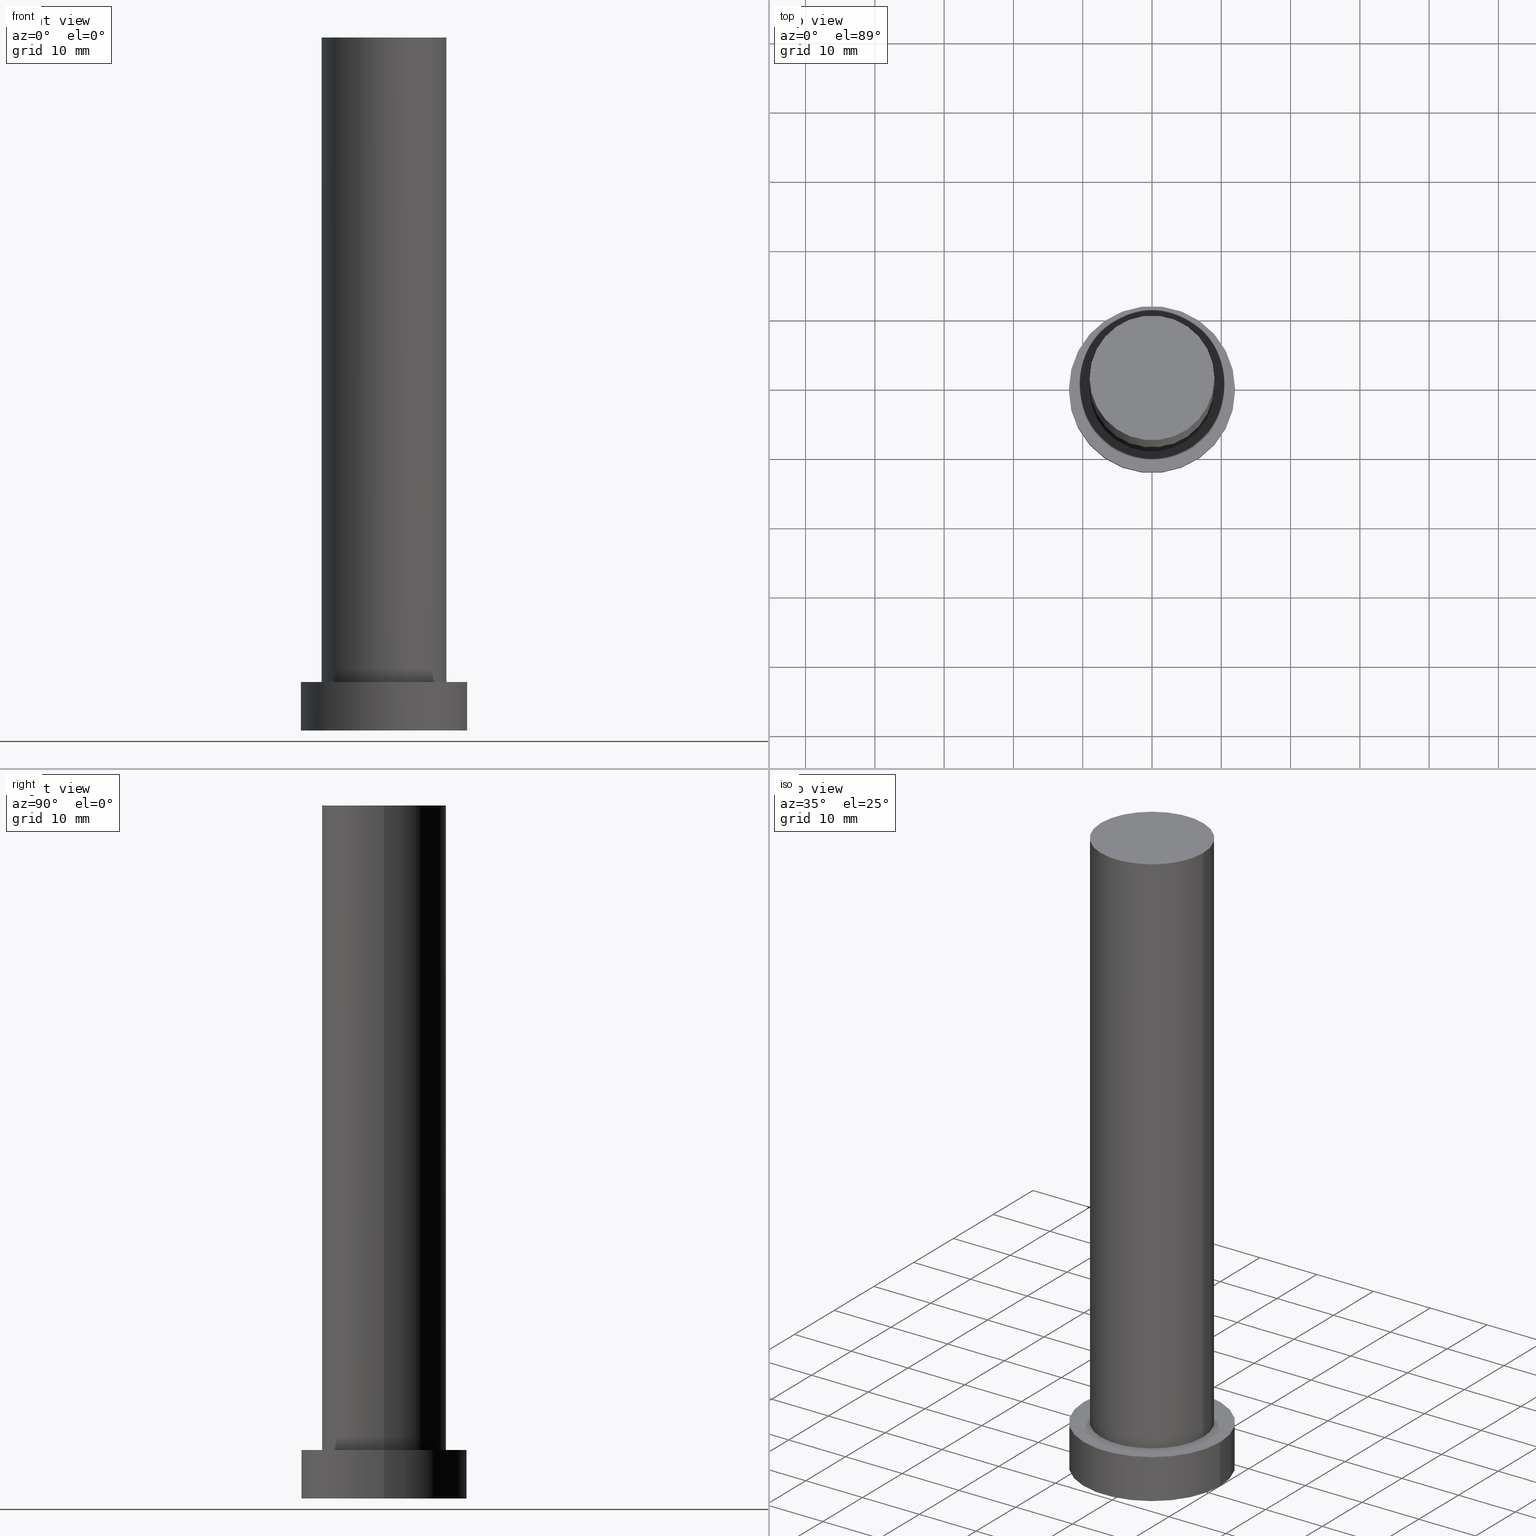
[diagram: canonical four-view strip — front | top / right | iso, engineering-drawing reading convention]
A machine part, canonical four-view strip (front | top / right | iso — engineering-drawing reading convention). The complete STEP part file that produces these views, byte-faithful:
ISO-10303-21;
HEADER;
FILE_DESCRIPTION (( 'STEP AP203' ),
    '1' );
FILE_NAME ('fcec.STEP',
    '2023-02-12T10:38:48',
    ( '' ),
    ( '' ),
    'SwSTEP 2.0',
    'SolidWorks 2019',
    '' );
FILE_SCHEMA (( 'CONFIG_CONTROL_DESIGN' ));
ENDSEC;

DATA;
#1 = SECURITY_CLASSIFICATION ( '', '', #4 ) ;
#2 = PERSON_AND_ORGANIZATION ( #185, #207 ) ;
#3 = CARTESIAN_POINT ( 'NONE',  ( 0.000000000000000000, 0.000000000000000000, 0.000000000000000000 ) ) ;
#4 = SECURITY_CLASSIFICATION_LEVEL ( 'unclassified' ) ;
#5 = LINE ( 'NONE', #172, #22 ) ;
#6 = EDGE_CURVE ( 'NONE', #217, #155, #44, .T. ) ;
#7 = CIRCLE ( 'NONE', #166, 9.000000000000001776 ) ;
#8 = CARTESIAN_POINT ( 'NONE',  ( 0.000000000000000000, 0.000000000000000000, 7.000000000000000000 ) ) ;
#9 = PERSON_AND_ORGANIZATION_ROLE ( 'creator' ) ;
#10 = DIRECTION ( 'NONE',  ( -1.000000000000000000, 0.000000000000000000, 0.000000000000000000 ) ) ;
#11 = AXIS2_PLACEMENT_3D ( 'NONE', #211, #25, #106 ) ;
#12 = DIRECTION ( 'NONE',  ( 0.000000000000000000, 0.000000000000000000, 1.000000000000000000 ) ) ;
#13 = CARTESIAN_POINT ( 'NONE',  ( 0.000000000000000000, 0.000000000000000000, 100.0000000000000000 ) ) ;
#14 = ADVANCED_FACE ( 'NONE', ( #234, #17 ), #54, .T. ) ;
#15 = ORIENTED_EDGE ( 'NONE', *, *, #227, .T. ) ;
#16 = CC_DESIGN_APPROVAL ( #131, ( #251 ) ) ;
#17 = FACE_OUTER_BOUND ( 'NONE', #101, .T. ) ;
#18 = DESIGN_CONTEXT ( 'detailed design', #96, 'design' ) ;
#19 = APPROVAL_STATUS ( 'not_yet_approved' ) ;
#20 = ORIENTED_EDGE ( 'NONE', *, *, #244, .T. ) ;
#21 = PERSON_AND_ORGANIZATION ( #185, #207 ) ;
#22 = VECTOR ( 'NONE', #235, 1000.000000000000000 ) ;
#23 = VERTEX_POINT ( 'NONE', #215 ) ;
#24 = CIRCLE ( 'NONE', #223, 9.000000000000001776 ) ;
#25 = DIRECTION ( 'NONE',  ( -0.000000000000000000, -0.000000000000000000, -1.000000000000000000 ) ) ;
#26 = APPLICATION_PROTOCOL_DEFINITION ( 'international standard', 'config_control_design', 1994, #171 ) ;
#27 = DIRECTION ( 'NONE',  ( 1.000000000000000000, 0.000000000000000000, 0.000000000000000000 ) ) ;
#28 = CARTESIAN_POINT ( 'NONE',  ( 9.000000000000001776, 1.102182119232617714E-15, 7.000000000000000000 ) ) ;
#29 = CARTESIAN_POINT ( 'NONE',  ( -12.00000000000000178, 0.000000000000000000, 0.000000000000000000 ) ) ;
#30 = DIRECTION ( 'NONE',  ( 0.000000000000000000, 0.000000000000000000, 1.000000000000000000 ) ) ;
#31 = CC_DESIGN_PERSON_AND_ORGANIZATION_ASSIGNMENT ( #140, #82, ( #1 ) ) ;
#32 = CARTESIAN_POINT ( 'NONE',  ( 0.000000000000000000, 0.000000000000000000, 100.0000000000000000 ) ) ;
#33 = APPROVAL_PERSON_ORGANIZATION ( #143, #118, #92 ) ;
#34 = ADVANCED_FACE ( 'NONE', ( #159 ), #137, .F. ) ;
#35 = PLANE ( 'NONE',  #71 ) ;
#36 = EDGE_LOOP ( 'NONE', ( #79, #122, #197, #191 ) ) ;
#37 = EDGE_CURVE ( 'NONE', #23, #85, #112, .T. ) ;
#38 = DIRECTION ( 'NONE',  ( 1.000000000000000000, 0.000000000000000000, -0.000000000000000000 ) ) ;
#39 = PERSON_AND_ORGANIZATION ( #185, #207 ) ;
#40 = ORIENTED_EDGE ( 'NONE', *, *, #37, .T. ) ;
#41 = EDGE_LOOP ( 'NONE', ( #138, #15, #40, #116 ) ) ;
#42 = DATE_AND_TIME ( #48, #151 ) ;
#43 = DIRECTION ( 'NONE',  ( -1.000000000000000000, 0.000000000000000000, 0.000000000000000000 ) ) ;
#44 = CIRCLE ( 'NONE', #199, 12.00000000000000178 ) ;
#45 = DATE_AND_TIME ( #181, #100 ) ;
#46 = APPROVAL_DATE_TIME ( #42, #202 ) ;
#47 = EDGE_CURVE ( 'NONE', #250, #99, #232, .T. ) ;
#48 = CALENDAR_DATE ( 2023, 12, 2 ) ;
#49 = DIRECTION ( 'NONE',  ( 1.000000000000000000, 0.000000000000000000, 0.000000000000000000 ) ) ;
#50 = EDGE_CURVE ( 'NONE', #174, #123, #5, .T. ) ;
#51 = ORIENTED_EDGE ( 'NONE', *, *, #37, .F. ) ;
#52 = ADVANCED_FACE ( 'NONE', ( #237 ), #60, .T. ) ;
#53 = CARTESIAN_POINT ( 'NONE',  ( -12.00000000000000178, 0.000000000000000000, 7.000000000000000000 ) ) ;
#54 = PLANE ( 'NONE',  #134 ) ;
#55 = ADVANCED_FACE ( 'NONE', ( #76 ), #35, .T. ) ;
#56 = DIRECTION ( 'NONE',  ( 1.000000000000000000, 0.000000000000000000, 0.000000000000000000 ) ) ;
#57 = VECTOR ( 'NONE', #208, 1000.000000000000000 ) ;
#58 = CARTESIAN_POINT ( 'NONE',  ( 0.000000000000000000, 0.000000000000000000, 7.000000000000000000 ) ) ;
#59 =( NAMED_UNIT ( * ) SI_UNIT ( $, .STERADIAN. ) SOLID_ANGLE_UNIT ( ) );
#60 = CYLINDRICAL_SURFACE ( 'NONE', #11, 9.000000000000001776 ) ;
#61 = DIRECTION ( 'NONE',  ( 1.000000000000000000, 0.000000000000000000, -0.000000000000000000 ) ) ;
#62 = DATE_TIME_ROLE ( 'creation_date' ) ;
#63 = DIRECTION ( 'NONE',  ( 1.000000000000000000, 0.000000000000000000, 0.000000000000000000 ) ) ;
#64 = LOCAL_TIME ( 11, 38, 48.00000000000000000, #238 ) ;
#65 = DATE_TIME_ROLE ( 'classification_date' ) ;
#66 = AXIS2_PLACEMENT_3D ( 'NONE', #3, #121, #27 ) ;
#67 = APPROVAL_ROLE ( '' ) ;
#68 = VECTOR ( 'NONE', #75, 1000.000000000000000 ) ;
#69 = DIRECTION ( 'NONE',  ( -0.000000000000000000, -0.000000000000000000, -1.000000000000000000 ) ) ;
#70 = CIRCLE ( 'NONE', #95, 9.000000000000001776 ) ;
#71 = AXIS2_PLACEMENT_3D ( 'NONE', #153, #212, #61 ) ;
#72 = EDGE_CURVE ( 'NONE', #155, #217, #247, .T. ) ;
#73 = APPROVAL_PERSON_ORGANIZATION ( #21, #131, #173 ) ;
#74 = ORIENTED_EDGE ( 'NONE', *, *, #6, .F. ) ;
#75 = DIRECTION ( 'NONE',  ( -0.000000000000000000, -0.000000000000000000, -1.000000000000000000 ) ) ;
#76 = FACE_OUTER_BOUND ( 'NONE', #98, .T. ) ;
#77 = ADVANCED_FACE ( 'NONE', ( #88 ), #220, .T. ) ;
#78 = CALENDAR_DATE ( 2023, 12, 2 ) ;
#79 = ORIENTED_EDGE ( 'NONE', *, *, #50, .F. ) ;
#80 = DIRECTION ( 'NONE',  ( 0.000000000000000000, 0.000000000000000000, 1.000000000000000000 ) ) ;
#81 = EDGE_LOOP ( 'NONE', ( #198, #51 ) ) ;
#82 = PERSON_AND_ORGANIZATION_ROLE ( 'classification_officer' ) ;
#83 = EDGE_CURVE ( 'NONE', #174, #250, #193, .T. ) ;
#84 = AXIS2_PLACEMENT_3D ( 'NONE', #204, #93, #43 ) ;
#85 = VERTEX_POINT ( 'NONE', #29 ) ;
#86 = PRODUCT ( 'fcec', 'fcec', '', ( #135 ) ) ;
#87 = PERSON_AND_ORGANIZATION_ROLE ( 'creator' ) ;
#88 = FACE_OUTER_BOUND ( 'NONE', #36, .T. ) ;
#89 = ADVANCED_FACE ( 'NONE', ( #222 ), #187, .T. ) ;
#90 = CALENDAR_DATE ( 2023, 12, 2 ) ;
#91 = DIRECTION ( 'NONE',  ( -1.000000000000000000, 0.000000000000000000, 0.000000000000000000 ) ) ;
#92 = APPROVAL_ROLE ( '' ) ;
#93 = DIRECTION ( 'NONE',  ( -0.000000000000000000, -0.000000000000000000, -1.000000000000000000 ) ) ;
#94 = CLOSED_SHELL ( 'NONE', ( #52, #129, #89, #14, #34, #77, #55 ) ) ;
#95 = AXIS2_PLACEMENT_3D ( 'NONE', #13, #142, #124 ) ;
#96 = APPLICATION_CONTEXT ( 'configuration controlled 3d designs of mechanical parts and assemblies' ) ;
#97 = EDGE_LOOP ( 'NONE', ( #114, #195 ) ) ;
#98 = EDGE_LOOP ( 'NONE', ( #228, #230 ) ) ;
#99 = VERTEX_POINT ( 'NONE', #110 ) ;
#100 = LOCAL_TIME ( 11, 38, 48.00000000000000000, #183 ) ;
#101 = EDGE_LOOP ( 'NONE', ( #248, #170 ) ) ;
#102 = DIRECTION ( 'NONE',  ( 1.000000000000000000, 0.000000000000000000, 0.000000000000000000 ) ) ;
#103 = EDGE_LOOP ( 'NONE', ( #160, #74, #20, #254 ) ) ;
#104 = LINE ( 'NONE', #53, #68 ) ;
#105 = ORIENTED_EDGE ( 'NONE', *, *, #47, .F. ) ;
#106 = DIRECTION ( 'NONE',  ( -1.000000000000000000, 0.000000000000000000, 0.000000000000000000 ) ) ;
#107 = DIRECTION ( 'NONE',  ( 1.000000000000000000, 0.000000000000000000, -0.000000000000000000 ) ) ;
#108 = COORDINATED_UNIVERSAL_TIME_OFFSET ( 1, 0, .AHEAD. ) ;
#109 = CARTESIAN_POINT ( 'NONE',  ( 9.000000000000001776, 1.102182119232617714E-15, 100.0000000000000000 ) ) ;
#110 = CARTESIAN_POINT ( 'NONE',  ( -9.000000000000001776, 0.000000000000000000, 7.000000000000000000 ) ) ;
#111 = DIRECTION ( 'NONE',  ( 1.000000000000000000, 0.000000000000000000, 0.000000000000000000 ) ) ;
#112 = CIRCLE ( 'NONE', #66, 12.00000000000000178 ) ;
#113 = CC_DESIGN_PERSON_AND_ORGANIZATION_ASSIGNMENT ( #163, #225, ( #130 ) ) ;
#114 = ORIENTED_EDGE ( 'NONE', *, *, #192, .F. ) ;
#115 = CIRCLE ( 'NONE', #255, 12.00000000000000178 ) ;
#116 = ORIENTED_EDGE ( 'NONE', *, *, #244, .F. ) ;
#117 = AXIS2_PLACEMENT_3D ( 'NONE', #8, #164, #91 ) ;
#118 = APPROVAL ( #219, 'NEUR�EN�' ) ;
#119 = CARTESIAN_POINT ( 'NONE',  ( 0.000000000000000000, 0.000000000000000000, 7.000000000000000000 ) ) ;
#120 = DIRECTION ( 'NONE',  ( 0.000000000000000000, 0.000000000000000000, 1.000000000000000000 ) ) ;
#121 = DIRECTION ( 'NONE',  ( 0.000000000000000000, 0.000000000000000000, 1.000000000000000000 ) ) ;
#122 = ORIENTED_EDGE ( 'NONE', *, *, #209, .F. ) ;
#123 = VERTEX_POINT ( 'NONE', #28 ) ;
#124 = DIRECTION ( 'NONE',  ( 1.000000000000000000, 0.000000000000000000, 0.000000000000000000 ) ) ;
#125 = PRODUCT_RELATED_PRODUCT_CATEGORY ( 'detail', '', ( #86 ) ) ;
#126 = FACE_OUTER_BOUND ( 'NONE', #41, .T. ) ;
#127 = SHAPE_DEFINITION_REPRESENTATION ( #161, #162 ) ;
#128 = CALENDAR_DATE ( 2023, 12, 2 ) ;
#129 = ADVANCED_FACE ( 'NONE', ( #126 ), #245, .T. ) ;
#130 = PRODUCT_DEFINITION_FORMATION_WITH_SPECIFIED_SOURCE ( 'LIBOVOLN�', '', #86, .NOT_KNOWN. ) ;
#131 = APPROVAL ( #19, 'NEUR�EN�' ) ;
#132 = VECTOR ( 'NONE', #136, 1000.000000000000000 ) ;
#133 = CC_DESIGN_APPROVAL ( #118, ( #130 ) ) ;
#134 = AXIS2_PLACEMENT_3D ( 'NONE', #58, #80, #107 ) ;
#135 = MECHANICAL_CONTEXT ( 'NONE', #171, 'mechanical' ) ;
#136 = DIRECTION ( 'NONE',  ( -0.000000000000000000, -0.000000000000000000, -1.000000000000000000 ) ) ;
#137 = PLANE ( 'NONE',  #231 ) ;
#138 = ORIENTED_EDGE ( 'NONE', *, *, #72, .F. ) ;
#139 = PERSON_AND_ORGANIZATION_ROLE ( 'design_owner' ) ;
#140 = PERSON_AND_ORGANIZATION ( #185, #207 ) ;
#141 = CC_DESIGN_APPROVAL ( #202, ( #1 ) ) ;
#142 = DIRECTION ( 'NONE',  ( 0.000000000000000000, 0.000000000000000000, 1.000000000000000000 ) ) ;
#143 = PERSON_AND_ORGANIZATION ( #185, #207 ) ;
#144 = PERSON_AND_ORGANIZATION ( #185, #207 ) ;
#145 = APPROVAL_DATE_TIME ( #45, #118 ) ;
#146 = APPROVAL_PERSON_ORGANIZATION ( #144, #202, #67 ) ;
#147 = CC_DESIGN_PERSON_AND_ORGANIZATION_ASSIGNMENT ( #186, #9, ( #130 ) ) ;
#148 = DIRECTION ( 'NONE',  ( 0.000000000000000000, 0.000000000000000000, 1.000000000000000000 ) ) ;
#149 =( GEOMETRIC_REPRESENTATION_CONTEXT ( 3 ) GLOBAL_UNCERTAINTY_ASSIGNED_CONTEXT ( ( #218 ) ) GLOBAL_UNIT_ASSIGNED_CONTEXT ( ( #196, #213, #59 ) ) REPRESENTATION_CONTEXT ( 'NONE', 'WORKASPACE' ) );
#150 = ORIENTED_EDGE ( 'NONE', *, *, #83, .F. ) ;
#151 = LOCAL_TIME ( 11, 38, 48.00000000000000000, #224 ) ;
#152 = CARTESIAN_POINT ( 'NONE',  ( -9.000000000000001776, 0.000000000000000000, 100.0000000000000000 ) ) ;
#153 = CARTESIAN_POINT ( 'NONE',  ( 0.000000000000000000, 0.000000000000000000, 100.0000000000000000 ) ) ;
#154 = DATE_AND_TIME ( #78, #249 ) ;
#155 = VERTEX_POINT ( 'NONE', #165 ) ;
#156 = AXIS2_PLACEMENT_3D ( 'NONE', #179, #194, #102 ) ;
#157 = CARTESIAN_POINT ( 'NONE',  ( -9.000000000000001776, 0.000000000000000000, 100.0000000000000000 ) ) ;
#158 = APPLICATION_PROTOCOL_DEFINITION ( 'international standard', 'config_control_design', 1994, #96 ) ;
#159 = FACE_OUTER_BOUND ( 'NONE', #81, .T. ) ;
#160 = ORIENTED_EDGE ( 'NONE', *, *, #227, .F. ) ;
#161 = PRODUCT_DEFINITION_SHAPE ( 'NONE', 'NONE',  #251 ) ;
#162 = ADVANCED_BREP_SHAPE_REPRESENTATION ( 'fcec', ( #178, #156 ), #149 ) ;
#163 = PERSON_AND_ORGANIZATION ( #185, #207 ) ;
#164 = DIRECTION ( 'NONE',  ( -0.000000000000000000, -0.000000000000000000, -1.000000000000000000 ) ) ;
#165 = CARTESIAN_POINT ( 'NONE',  ( 12.00000000000000178, 1.469576158976824144E-15, 7.000000000000000000 ) ) ;
#166 = AXIS2_PLACEMENT_3D ( 'NONE', #189, #148, #190 ) ;
#167 = DIRECTION ( 'NONE',  ( 1.000000000000000000, 0.000000000000000000, 0.000000000000000000 ) ) ;
#168 = CC_DESIGN_PERSON_AND_ORGANIZATION_ASSIGNMENT ( #2, #139, ( #86 ) ) ;
#169 = CARTESIAN_POINT ( 'NONE',  ( 12.00000000000000178, 1.469576158976824144E-15, 7.000000000000000000 ) ) ;
#170 = ORIENTED_EDGE ( 'NONE', *, *, #72, .T. ) ;
#171 = APPLICATION_CONTEXT ( 'configuration controlled 3d designs of mechanical parts and assemblies' ) ;
#172 = CARTESIAN_POINT ( 'NONE',  ( 9.000000000000001776, 1.102182119232617714E-15, 100.0000000000000000 ) ) ;
#173 = APPROVAL_ROLE ( '' ) ;
#174 = VERTEX_POINT ( 'NONE', #109 ) ;
#175 = EDGE_CURVE ( 'NONE', #123, #99, #24, .T. ) ;
#176 = EDGE_LOOP ( 'NONE', ( #150, #214, #252, #105 ) ) ;
#177 = AXIS2_PLACEMENT_3D ( 'NONE', #243, #69, #10 ) ;
#178 = MANIFOLD_SOLID_BREP ( 'P�idat vysunut�m3', #94 ) ;
#179 = CARTESIAN_POINT ( 'NONE',  ( 0.000000000000000000, 0.000000000000000000, 0.000000000000000000 ) ) ;
#180 = CARTESIAN_POINT ( 'NONE',  ( 0.000000000000000000, 0.000000000000000000, 7.000000000000000000 ) ) ;
#181 = CALENDAR_DATE ( 2023, 12, 2 ) ;
#182 = DIRECTION ( 'NONE',  ( 0.000000000000000000, 0.000000000000000000, 1.000000000000000000 ) ) ;
#183 = COORDINATED_UNIVERSAL_TIME_OFFSET ( 1, 0, .AHEAD. ) ;
#184 = LINE ( 'NONE', #169, #57 ) ;
#185 = PERSON ( 'NEUR�EN�', 'NEUR�EN�', 'NEUR�EN�', ('NEUR�EN�'), ('NEUR�EN�'), ('NEUR�EN�') ) ;
#186 = PERSON_AND_ORGANIZATION ( #185, #207 ) ;
#187 = CYLINDRICAL_SURFACE ( 'NONE', #177, 12.00000000000000178 ) ;
#188 = DATE_AND_TIME ( #128, #242 ) ;
#189 = CARTESIAN_POINT ( 'NONE',  ( 0.000000000000000000, 0.000000000000000000, 7.000000000000000000 ) ) ;
#190 = DIRECTION ( 'NONE',  ( 1.000000000000000000, 0.000000000000000000, 0.000000000000000000 ) ) ;
#191 = ORIENTED_EDGE ( 'NONE', *, *, #192, .T. ) ;
#192 = EDGE_CURVE ( 'NONE', #99, #123, #7, .T. ) ;
#193 = CIRCLE ( 'NONE', #226, 9.000000000000001776 ) ;
#194 = DIRECTION ( 'NONE',  ( 0.000000000000000000, 0.000000000000000000, 1.000000000000000000 ) ) ;
#195 = ORIENTED_EDGE ( 'NONE', *, *, #175, .F. ) ;
#196 =( LENGTH_UNIT ( ) NAMED_UNIT ( * ) SI_UNIT ( .MILLI., .METRE. ) );
#197 = ORIENTED_EDGE ( 'NONE', *, *, #47, .T. ) ;
#198 = ORIENTED_EDGE ( 'NONE', *, *, #229, .F. ) ;
#199 = AXIS2_PLACEMENT_3D ( 'NONE', #119, #200, #63 ) ;
#200 = DIRECTION ( 'NONE',  ( 0.000000000000000000, 0.000000000000000000, 1.000000000000000000 ) ) ;
#201 = CARTESIAN_POINT ( 'NONE',  ( 0.000000000000000000, 0.000000000000000000, 0.000000000000000000 ) ) ;
#202 = APPROVAL ( #241, 'NEUR�EN�' ) ;
#203 = CARTESIAN_POINT ( 'NONE',  ( -12.00000000000000178, 0.000000000000000000, 7.000000000000000000 ) ) ;
#204 = CARTESIAN_POINT ( 'NONE',  ( 0.000000000000000000, 0.000000000000000000, 100.0000000000000000 ) ) ;
#205 = CARTESIAN_POINT ( 'NONE',  ( 0.000000000000000000, 0.000000000000000000, 7.000000000000000000 ) ) ;
#206 = CC_DESIGN_SECURITY_CLASSIFICATION ( #1, ( #130 ) ) ;
#207 = ORGANIZATION ( 'NEUR�EN�', 'NEUR�EN�', '' ) ;
#208 = DIRECTION ( 'NONE',  ( -0.000000000000000000, -0.000000000000000000, -1.000000000000000000 ) ) ;
#209 = EDGE_CURVE ( 'NONE', #250, #174, #70, .T. ) ;
#210 = CARTESIAN_POINT ( 'NONE',  ( 0.000000000000000000, 0.000000000000000000, 0.000000000000000000 ) ) ;
#211 = CARTESIAN_POINT ( 'NONE',  ( 0.000000000000000000, 0.000000000000000000, 100.0000000000000000 ) ) ;
#212 = DIRECTION ( 'NONE',  ( 0.000000000000000000, 0.000000000000000000, 1.000000000000000000 ) ) ;
#213 =( NAMED_UNIT ( * ) PLANE_ANGLE_UNIT ( ) SI_UNIT ( $, .RADIAN. ) );
#214 = ORIENTED_EDGE ( 'NONE', *, *, #50, .T. ) ;
#215 = CARTESIAN_POINT ( 'NONE',  ( 12.00000000000000178, 1.469576158976824144E-15, 0.000000000000000000 ) ) ;
#216 = AXIS2_PLACEMENT_3D ( 'NONE', #180, #12, #49 ) ;
#217 = VERTEX_POINT ( 'NONE', #203 ) ;
#218 = UNCERTAINTY_MEASURE_WITH_UNIT (LENGTH_MEASURE( 1.000000000000000082E-05 ), #196, 'distance_accuracy_value', 'NONE');
#219 = APPROVAL_STATUS ( 'not_yet_approved' ) ;
#220 = CYLINDRICAL_SURFACE ( 'NONE', #84, 9.000000000000001776 ) ;
#221 = DIRECTION ( 'NONE',  ( 0.000000000000000000, 0.000000000000000000, 1.000000000000000000 ) ) ;
#222 = FACE_OUTER_BOUND ( 'NONE', #103, .T. ) ;
#223 = AXIS2_PLACEMENT_3D ( 'NONE', #205, #30, #111 ) ;
#224 = COORDINATED_UNIVERSAL_TIME_OFFSET ( 1, 0, .AHEAD. ) ;
#225 = PERSON_AND_ORGANIZATION_ROLE ( 'design_supplier' ) ;
#226 = AXIS2_PLACEMENT_3D ( 'NONE', #32, #221, #167 ) ;
#227 = EDGE_CURVE ( 'NONE', #155, #23, #184, .T. ) ;
#228 = ORIENTED_EDGE ( 'NONE', *, *, #209, .T. ) ;
#229 = EDGE_CURVE ( 'NONE', #85, #23, #115, .T. ) ;
#230 = ORIENTED_EDGE ( 'NONE', *, *, #83, .T. ) ;
#231 = AXIS2_PLACEMENT_3D ( 'NONE', #201, #182, #38 ) ;
#232 = LINE ( 'NONE', #157, #132 ) ;
#233 = APPROVAL_DATE_TIME ( #154, #131 ) ;
#234 = FACE_BOUND ( 'NONE', #97, .T. ) ;
#235 = DIRECTION ( 'NONE',  ( -0.000000000000000000, -0.000000000000000000, -1.000000000000000000 ) ) ;
#236 = CC_DESIGN_DATE_AND_TIME_ASSIGNMENT ( #240, #65, ( #1 ) ) ;
#237 = FACE_OUTER_BOUND ( 'NONE', #176, .T. ) ;
#238 = COORDINATED_UNIVERSAL_TIME_OFFSET ( 1, 0, .AHEAD. ) ;
#239 = CC_DESIGN_PERSON_AND_ORGANIZATION_ASSIGNMENT ( #39, #87, ( #251 ) ) ;
#240 = DATE_AND_TIME ( #90, #64 ) ;
#241 = APPROVAL_STATUS ( 'not_yet_approved' ) ;
#242 = LOCAL_TIME ( 11, 38, 48.00000000000000000, #108 ) ;
#243 = CARTESIAN_POINT ( 'NONE',  ( 0.000000000000000000, 0.000000000000000000, 7.000000000000000000 ) ) ;
#244 = EDGE_CURVE ( 'NONE', #217, #85, #104, .T. ) ;
#245 = CYLINDRICAL_SURFACE ( 'NONE', #117, 12.00000000000000178 ) ;
#246 = CC_DESIGN_DATE_AND_TIME_ASSIGNMENT ( #188, #62, ( #251 ) ) ;
#247 = CIRCLE ( 'NONE', #216, 12.00000000000000178 ) ;
#248 = ORIENTED_EDGE ( 'NONE', *, *, #6, .T. ) ;
#249 = LOCAL_TIME ( 11, 38, 48.00000000000000000, #253 ) ;
#250 = VERTEX_POINT ( 'NONE', #152 ) ;
#251 = PRODUCT_DEFINITION ( 'NEZN�M�', '', #130, #18 ) ;
#252 = ORIENTED_EDGE ( 'NONE', *, *, #175, .T. ) ;
#253 = COORDINATED_UNIVERSAL_TIME_OFFSET ( 1, 0, .AHEAD. ) ;
#254 = ORIENTED_EDGE ( 'NONE', *, *, #229, .T. ) ;
#255 = AXIS2_PLACEMENT_3D ( 'NONE', #210, #120, #56 ) ;
ENDSEC;
END-ISO-10303-21;
